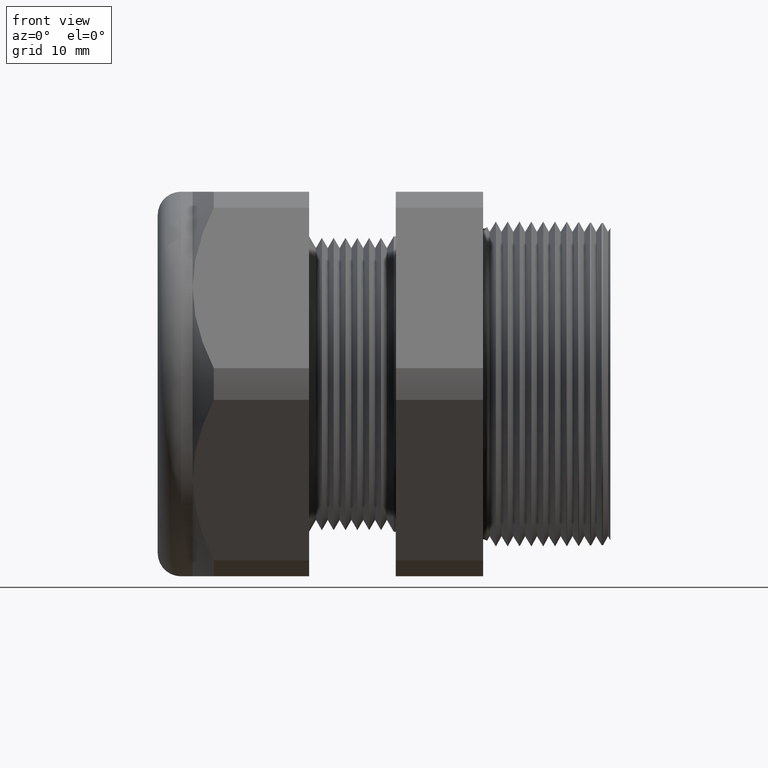
[diagram: clean part render]
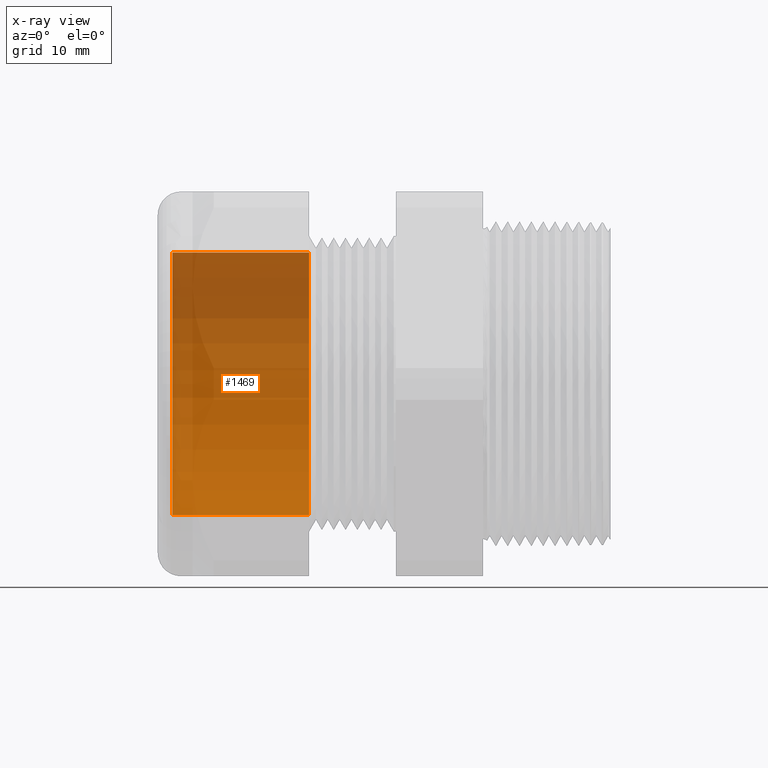
[diagram: x-ray — body ghosted, one internal face saturated and labeled with its STEP entity id]
A machine part, front view, then the same camera in x-ray: the body is ghosted and one INTERNAL B-rep face — a face not visible from any outside direction — is saturated and labeled: STEP entity #1469.
In plain terms, the highlighted cylindrical surface (partial cylindrical patch) has radius 11.2776 mm, axis along (1, 0, 0).
Its self-contained STEP definition (entity closure, byte-faithful):
#1174 = VERTEX_POINT ( 'NONE', #2379 ) ;
#1178 = EDGE_LOOP ( 'NONE', ( #1480, #1476, #1479, #1475 ) ) ;
#1448 = EDGE_CURVE ( 'NONE', #1174, #1451, #2392, .T. ) ;
#1451 = VERTEX_POINT ( 'NONE', #2387 ) ;
#1462 = VERTEX_POINT ( 'NONE', #2439 ) ;
#1469 = ADVANCED_FACE ( 'NONE', ( #2425 ), #2423, .T. ) ;
#1471 = EDGE_CURVE ( 'NONE', #1462, #1478, #2474, .T. ) ;
#1474 = EDGE_CURVE ( 'NONE', #1174, #1462, #2465, .T. ) ;
#1475 = ORIENTED_EDGE ( 'NONE', *, *, #1474, .F. ) ;
#1476 = ORIENTED_EDGE ( 'NONE', *, *, #1481, .T. ) ;
#1478 = VERTEX_POINT ( 'NONE', #2460 ) ;
#1479 = ORIENTED_EDGE ( 'NONE', *, *, #1471, .F. ) ;
#1480 = ORIENTED_EDGE ( 'NONE', *, *, #1448, .T. ) ;
#1481 = EDGE_CURVE ( 'NONE', #1451, #1478, #2459, .T. ) ;
#2379 = CARTESIAN_POINT ( 'NONE',  ( -1.359999999999999900, 0.0000000000000000000, -0.4439999999999999500 ) ) ;
#2387 = CARTESIAN_POINT ( 'NONE',  ( -1.359999999999999900, 5.437431788214247900E-017, 0.4439999999999999500 ) ) ;
#2388 = DIRECTION ( 'NONE',  ( 0.0000000000000000000, 0.0000000000000000000, -1.000000000000000000 ) ) ;
#2389 = DIRECTION ( 'NONE',  ( 1.000000000000000000, 0.0000000000000000000, 0.0000000000000000000 ) ) ;
#2390 = CARTESIAN_POINT ( 'NONE',  ( -1.359999999999999900, 0.0000000000000000000, 0.0000000000000000000 ) ) ;
#2391 = AXIS2_PLACEMENT_3D ( 'NONE', #2390, #2389, #2388 ) ;
#2392 = CIRCLE ( 'NONE', #2391, 0.4439999999999999500 ) ;
#2420 = DIRECTION ( 'NONE',  ( 0.0000000000000000000, 0.0000000000000000000, -1.000000000000000000 ) ) ;
#2421 = DIRECTION ( 'NONE',  ( 1.000000000000000000, 0.0000000000000000000, 0.0000000000000000000 ) ) ;
#2422 = AXIS2_PLACEMENT_3D ( 'NONE', #2424, #2421, #2420 ) ;
#2423 = CYLINDRICAL_SURFACE ( 'NONE', #2422, 0.4439999999999999500 ) ;
#2424 = CARTESIAN_POINT ( 'NONE',  ( 0.0000000000000000000, 0.0000000000000000000, 0.0000000000000000000 ) ) ;
#2425 = FACE_OUTER_BOUND ( 'NONE', #1178, .T. ) ;
#2439 = CARTESIAN_POINT ( 'NONE',  ( -0.8981889763779525900, 0.0000000000000000000, -0.4439999999999999500 ) ) ;
#2456 = DIRECTION ( 'NONE',  ( 1.000000000000000000, 0.0000000000000000000, 0.0000000000000000000 ) ) ;
#2457 = VECTOR ( 'NONE', #2456, 39.37007874015748100 ) ;
#2458 = CARTESIAN_POINT ( 'NONE',  ( 0.0000000000000000000, 5.437431788214247900E-017, 0.4439999999999999500 ) ) ;
#2459 = LINE ( 'NONE', #2458, #2457 ) ;
#2460 = CARTESIAN_POINT ( 'NONE',  ( -0.8981889763779525900, 5.437431788214247900E-017, 0.4439999999999999500 ) ) ;
#2462 = DIRECTION ( 'NONE',  ( 1.000000000000000000, 0.0000000000000000000, 0.0000000000000000000 ) ) ;
#2463 = VECTOR ( 'NONE', #2462, 39.37007874015748100 ) ;
#2464 = CARTESIAN_POINT ( 'NONE',  ( 0.0000000000000000000, 0.0000000000000000000, -0.4439999999999999500 ) ) ;
#2465 = LINE ( 'NONE', #2464, #2463 ) ;
#2471 = DIRECTION ( 'NONE',  ( 0.0000000000000000000, 0.0000000000000000000, -1.000000000000000000 ) ) ;
#2472 = DIRECTION ( 'NONE',  ( 1.000000000000000000, 0.0000000000000000000, 0.0000000000000000000 ) ) ;
#2473 = AXIS2_PLACEMENT_3D ( 'NONE', #2478, #2472, #2471 ) ;
#2474 = CIRCLE ( 'NONE', #2473, 0.4439999999999999500 ) ;
#2478 = CARTESIAN_POINT ( 'NONE',  ( -0.8981889763779525900, 0.0000000000000000000, 0.0000000000000000000 ) ) ;